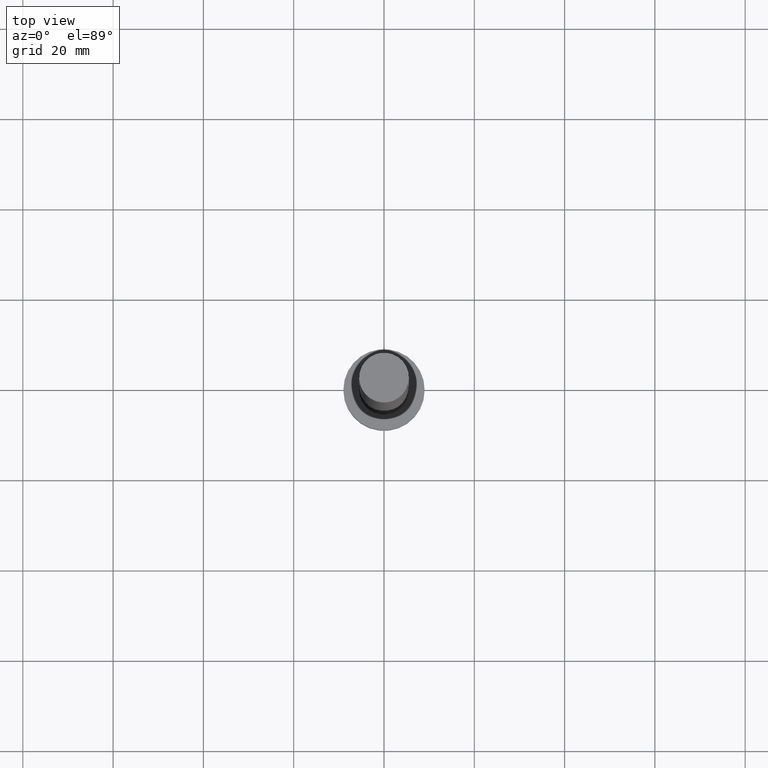
[diagram: clean part render]
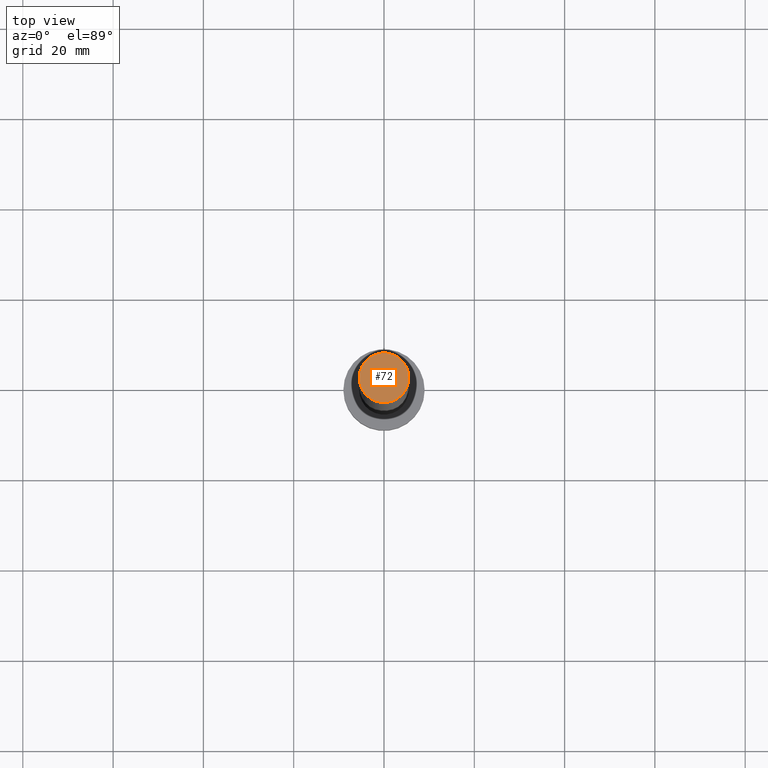
[diagram: same view with one face highlighted and labeled with its STEP entity id]
A machine part, top view. The second image highlights one B-rep face of the part: STEP entity #72.
In plain terms, the highlighted planar face has unit normal (0, 0, 1).
Its self-contained STEP definition (entity closure, byte-faithful):
#7 = VERTEX_POINT ( 'NONE', #47 ) ;
#24 = EDGE_CURVE ( 'NONE', #7, #182, #132, .T. ) ;
#32 = ORIENTED_EDGE ( 'NONE', *, *, #118, .T. ) ;
#37 = DIRECTION ( 'NONE',  ( 1.000000000000000000, 0.000000000000000000, 0.000000000000000000 ) ) ;
#47 = CARTESIAN_POINT ( 'NONE',  ( 5.500000000000000000, 6.735557395310442023E-16, 160.0000000000000000 ) ) ;
#49 = AXIS2_PLACEMENT_3D ( 'NONE', #142, #205, #37 ) ;
#61 = FACE_OUTER_BOUND ( 'NONE', #102, .T. ) ;
#72 = ADVANCED_FACE ( 'NONE', ( #61 ), #160, .T. ) ;
#73 = DIRECTION ( 'NONE',  ( 0.000000000000000000, 0.000000000000000000, 1.000000000000000000 ) ) ;
#77 = CIRCLE ( 'NONE', #49, 5.500000000000000000 ) ;
#78 = CARTESIAN_POINT ( 'NONE',  ( -5.500000000000000000, 0.000000000000000000, 160.0000000000000000 ) ) ;
#87 = DIRECTION ( 'NONE',  ( 1.000000000000000000, 0.000000000000000000, -0.000000000000000000 ) ) ;
#88 = CARTESIAN_POINT ( 'NONE',  ( 0.000000000000000000, 0.000000000000000000, 160.0000000000000000 ) ) ;
#98 = ORIENTED_EDGE ( 'NONE', *, *, #24, .T. ) ;
#102 = EDGE_LOOP ( 'NONE', ( #32, #98 ) ) ;
#106 = DIRECTION ( 'NONE',  ( 0.000000000000000000, 0.000000000000000000, 1.000000000000000000 ) ) ;
#112 = CARTESIAN_POINT ( 'NONE',  ( 0.000000000000000000, 0.000000000000000000, 160.0000000000000000 ) ) ;
#118 = EDGE_CURVE ( 'NONE', #182, #7, #77, .T. ) ;
#132 = CIRCLE ( 'NONE', #166, 5.500000000000000000 ) ;
#142 = CARTESIAN_POINT ( 'NONE',  ( 0.000000000000000000, 0.000000000000000000, 160.0000000000000000 ) ) ;
#160 = PLANE ( 'NONE',  #194 ) ;
#166 = AXIS2_PLACEMENT_3D ( 'NONE', #112, #73, #187 ) ;
#182 = VERTEX_POINT ( 'NONE', #78 ) ;
#187 = DIRECTION ( 'NONE',  ( 1.000000000000000000, 0.000000000000000000, 0.000000000000000000 ) ) ;
#194 = AXIS2_PLACEMENT_3D ( 'NONE', #88, #106, #87 ) ;
#205 = DIRECTION ( 'NONE',  ( 0.000000000000000000, 0.000000000000000000, 1.000000000000000000 ) ) ;